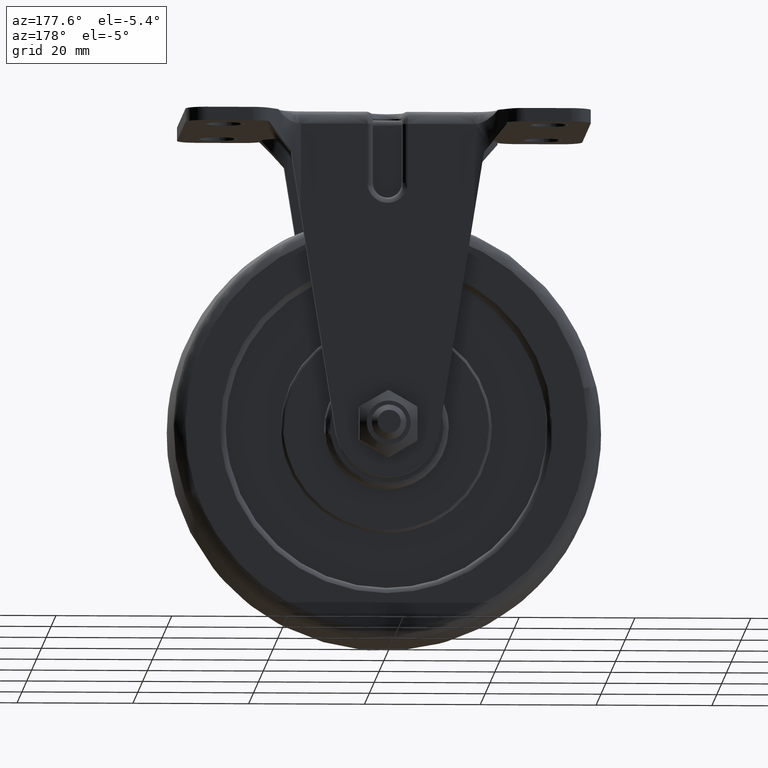
[diagram: clean part render]
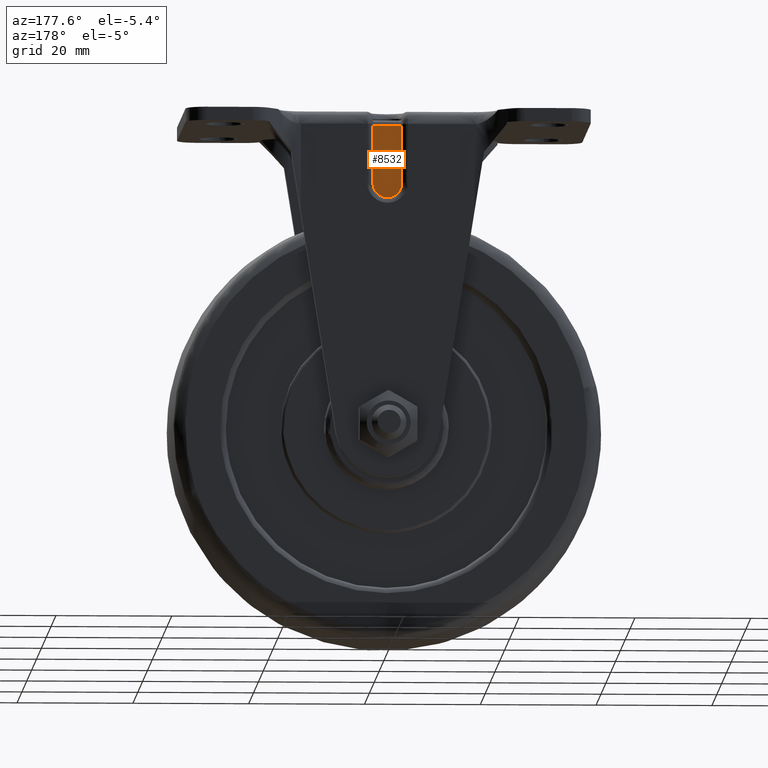
[diagram: same view with one face highlighted and labeled with its STEP entity id]
A machine part, auxiliary view. The second image highlights one B-rep face of the part: STEP entity #8532.
In plain terms, the highlighted face is a freeform B-spline surface patch.
Its self-contained STEP definition (entity closure, byte-faithful):
#5353=CARTESIAN_POINT('',(-2.500000000000000,13.800006999999940,51.999999000000003));
#5354=VERTEX_POINT('',#5353);
#5375=CARTESIAN_POINT('',(2.500000000000000,13.800006999999940,51.999999000000003));
#5376=VERTEX_POINT('',#5375);
#5390=CARTESIAN_POINT('',(-2.500000000000000,13.800006999999940,51.999999000000003));
#5391=CARTESIAN_POINT('',(2.500000000000000,13.800006999999940,51.999999000000003));
#5392=QUASI_UNIFORM_CURVE('',1,(#5390,#5391),.UNSPECIFIED.,.F.,.U.);
#5393=EDGE_CURVE('',#5354,#5376,#5392,.T.);
#6458=CARTESIAN_POINT('',(2.500000000000000,13.800006999999940,42.0));
#6459=VERTEX_POINT('',#6458);
#6466=CARTESIAN_POINT('',(-2.500000000000000,13.800006999999940,42.0));
#6467=VERTEX_POINT('',#6466);
#6473=CARTESIAN_POINT('',(-2.500000000000000,13.800006999999940,42.0));
#6474=CARTESIAN_POINT('',(-2.500000000000000,13.800006999999940,39.500000000000000));
#6475=CARTESIAN_POINT('',(0.0,13.800006999999940,39.500000000000000));
#6476=CARTESIAN_POINT('',(2.500000000000000,13.800006999999940,39.500000000000000));
#6477=CARTESIAN_POINT('',(2.500000000000000,13.800006999999940,42.0));
#6485=(BOUNDED_CURVE()B_SPLINE_CURVE(2,(#6473,#6474,#6475,#6476,#6477),.UNSPECIFIED.,.F.,.U.)B_SPLINE_CURVE_WITH_KNOTS((3,2,3),(0.0,0.500000000000000,1.0),.UNSPECIFIED.)CURVE()GEOMETRIC_REPRESENTATION_ITEM()RATIONAL_B_SPLINE_CURVE((1.0,0.707106781186548,1.0,0.707106781186548,1.0))REPRESENTATION_ITEM(''));
#6486=EDGE_CURVE('',#6467,#6459,#6485,.T.);
#8513=CARTESIAN_POINT('',(-2.749749990309030,13.800007000000001,38.875625029518652));
#8514=CARTESIAN_POINT('',(2.749750124419481,13.800007000000001,38.875625029518652));
#8515=CARTESIAN_POINT('',(-2.749749990309030,13.800007000000001,52.624375199827057));
#8516=CARTESIAN_POINT('',(2.749750124419481,13.800007000000001,52.624375199827057));
#8517=B_SPLINE_SURFACE_WITH_KNOTS('',1,1,((#8513,#8515),(#8514,#8516)),.UNSPECIFIED.,.F.,.F.,.U.,(2,2),(2,2),(0.0,5.499500114728511),(0.0,13.748750170308410),.UNSPECIFIED.);
#8518=CARTESIAN_POINT('',(-2.500000000000000,13.800006999999940,42.0));
#8519=CARTESIAN_POINT('',(-2.500000000000000,13.800006999999940,51.999999000000003));
#8520=QUASI_UNIFORM_CURVE('',1,(#8518,#8519),.UNSPECIFIED.,.F.,.U.);
#8521=EDGE_CURVE('',#6467,#5354,#8520,.T.);
#8522=ORIENTED_EDGE('',*,*,#8521,.T.);
#8523=ORIENTED_EDGE('',*,*,#5393,.T.);
#8524=CARTESIAN_POINT('',(2.500000000000000,13.800006999999940,51.999999000000003));
#8525=CARTESIAN_POINT('',(2.500000000000000,13.800006999999940,42.0));
#8526=QUASI_UNIFORM_CURVE('',1,(#8524,#8525),.UNSPECIFIED.,.F.,.U.);
#8527=EDGE_CURVE('',#5376,#6459,#8526,.T.);
#8528=ORIENTED_EDGE('',*,*,#8527,.T.);
#8529=ORIENTED_EDGE('',*,*,#6486,.F.);
#8530=EDGE_LOOP('',(#8522,#8523,#8528,#8529));
#8531=FACE_OUTER_BOUND('',#8530,.T.);
#8532=ADVANCED_FACE('',(#8531),#8517,.F.);